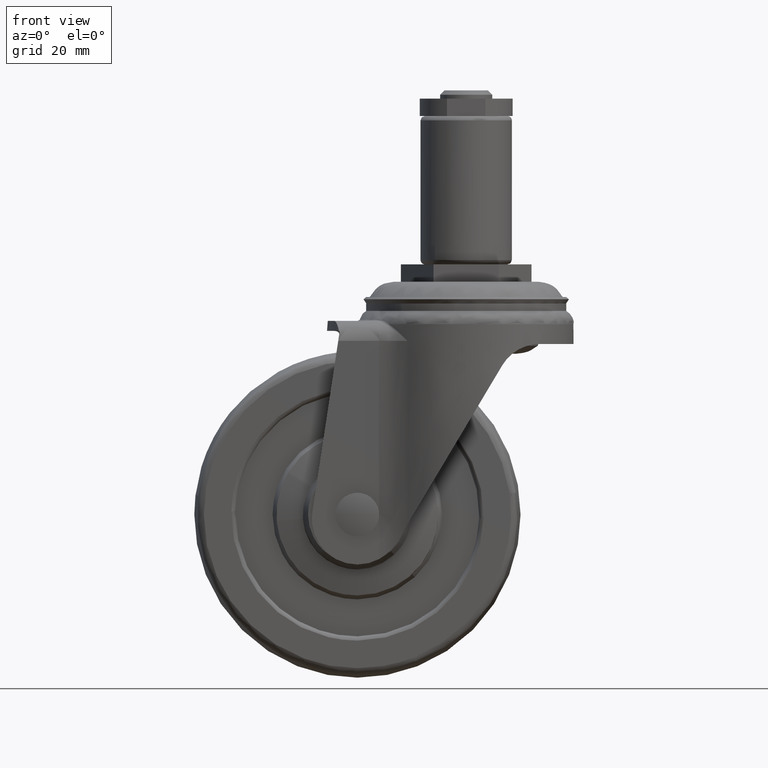
[diagram: clean part render]
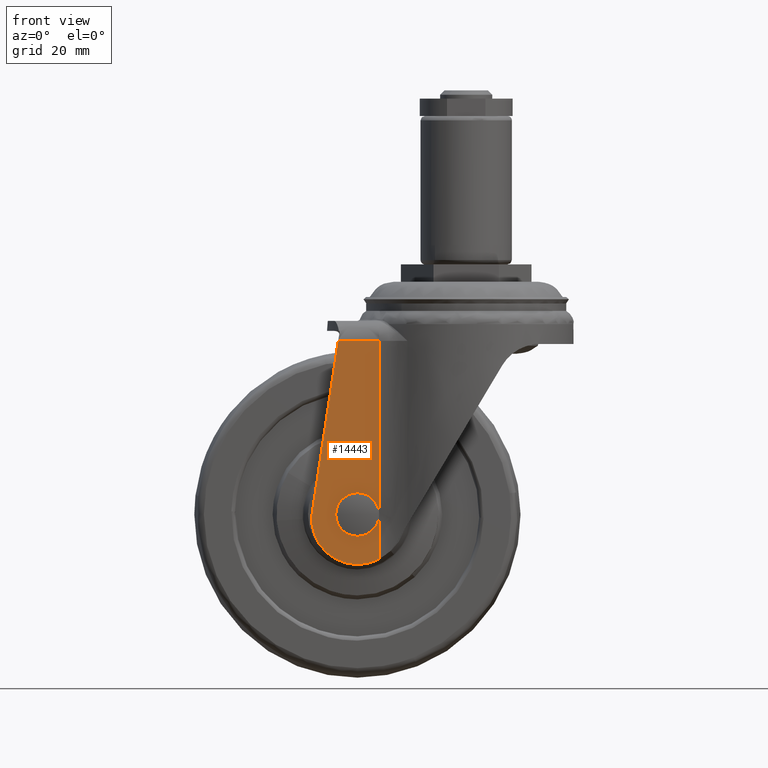
[diagram: same view with one face highlighted and labeled with its STEP entity id]
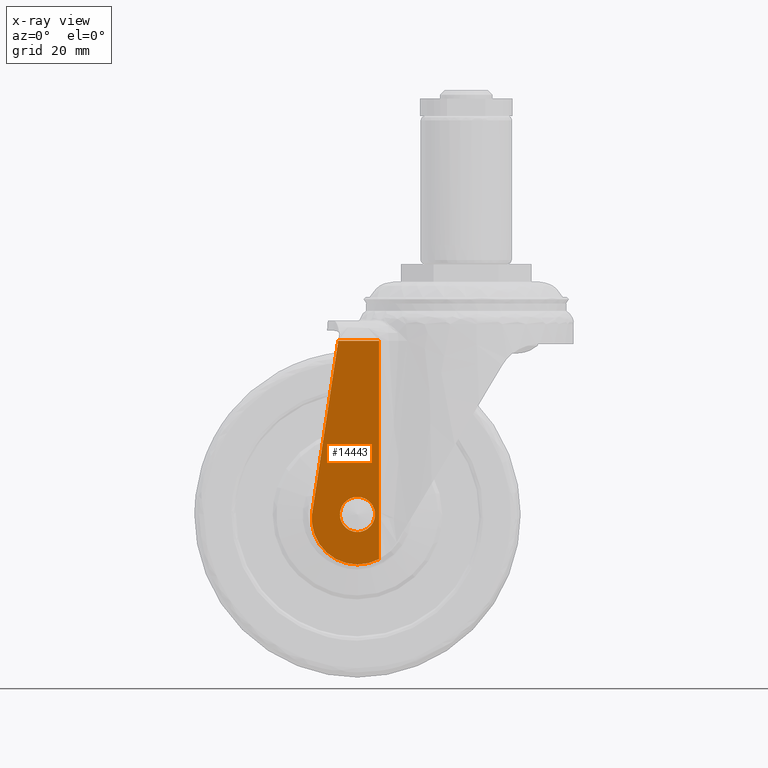
[diagram: x-ray of the same camera — body ghosted, the highlighted face saturated]
A machine part, front view. The second image highlights one B-rep face of the part: STEP entity #14443.
The next image is the same camera in x-ray: the body ghosted, the highlighted face saturated — about 0% of this face is hidden behind the body in this view.
In plain terms, the highlighted face is a freeform B-spline surface patch.
Its self-contained STEP definition (entity closure, byte-faithful):
#6963=CARTESIAN_POINT('',(-22.104730517182318,-18.808499999999999,-52.682374986802600));
#6964=VERTEX_POINT('',#6963);
#6970=CARTESIAN_POINT('',(-25.0,-18.808499999999999,-51.460000000000001));
#6971=VERTEX_POINT('',#6970);
#6972=CARTESIAN_POINT('',(-25.0,-18.808499999999999,-51.460000000000001));
#6973=CARTESIAN_POINT('',(-24.747820908732521,-18.808500000000031,-51.459983683508320));
#6974=CARTESIAN_POINT('',(-24.193039371534951,-18.808499999999981,-51.512089844375673));
#6975=CARTESIAN_POINT('',(-23.158415515402339,-18.808500000000009,-51.831538183724192));
#6976=CARTESIAN_POINT('',(-22.467896542841409,-18.808500000000031,-52.308423291384742));
#6977=CARTESIAN_POINT('',(-22.104730517182318,-18.808499999999999,-52.682374986802600));
#6978=B_SPLINE_CURVE_WITH_KNOTS('',3,(#6972,#6973,#6974,#6975,#6976,#6977),.UNSPECIFIED.,.F.,.U.,(4,1,1,4),(0.000000044570634,0.756546732482980,1.664377610406831,3.227933975321728),.UNSPECIFIED.);
#6979=EDGE_CURVE('',#6971,#6964,#6978,.T.);
#6981=CARTESIAN_POINT('',(-29.039999999999541,-18.808499999999999,-55.499998065191903));
#6982=VERTEX_POINT('',#6981);
#6983=CARTESIAN_POINT('',(-29.039999999999541,-18.808499999999999,-55.499998065191903));
#6984=CARTESIAN_POINT('',(-29.040147795907458,-18.808499999999999,-55.119886109124003));
#6985=CARTESIAN_POINT('',(-28.931917736165008,-18.808500000000009,-54.359748664216482));
#6986=CARTESIAN_POINT('',(-28.520576522014501,-18.808499999999921,-53.446672805311238));
#6987=CARTESIAN_POINT('',(-28.008177917698010,-18.808500000000141,-52.773529637566398));
#6988=CARTESIAN_POINT('',(-27.461349733231799,-18.808499999999832,-52.265487926082727));
#6989=CARTESIAN_POINT('',(-26.827196311980931,-18.808500000000230,-51.869342531482047));
#6990=CARTESIAN_POINT('',(-25.991485064705788,-18.808499999999849,-51.546971109374802));
#6991=CARTESIAN_POINT('',(-25.380118247272168,-18.808500000000048,-51.459851179663552));
#6992=CARTESIAN_POINT('',(-25.0,-18.808499999999999,-51.460000000000001));
#6993=B_SPLINE_CURVE_WITH_KNOTS('',3,(#6983,#6984,#6985,#6986,#6987,#6988,#6989,#6990,#6991,#6992),.UNSPECIFIED.,.F.,.U.,(4,1,1,1,1,1,1,4),(0.000000171866430,1.140301460826011,2.280636843987864,2.974731948040426,3.668786160509507,4.511647255233624,5.205754599899709,6.346055888333564),.UNSPECIFIED.);
#6994=EDGE_CURVE('',#6982,#6971,#6993,.T.);
#6996=CARTESIAN_POINT('',(-25.0,-18.808499999999999,-59.539999999999999));
#6997=VERTEX_POINT('',#6996);
#6998=CARTESIAN_POINT('',(-25.0,-18.808499999999999,-59.539999999999999));
#6999=CARTESIAN_POINT('',(-25.330523766623799,-18.808499999999938,-59.540088006725597));
#7000=CARTESIAN_POINT('',(-25.875839845038850,-18.808500000000059,-59.472679068412972));
#7001=CARTESIAN_POINT('',(-26.661345280837612,-18.808499999999949,-59.207833077012943));
#7002=CARTESIAN_POINT('',(-27.314181601843860,-18.808500000000102,-58.843302535463010));
#7003=CARTESIAN_POINT('',(-27.882641235858049,-18.808499999999899,-58.358947862811739));
#7004=CARTESIAN_POINT('',(-28.359468573408190,-18.808500000000059,-57.785181615995377));
#7005=CARTESIAN_POINT('',(-28.756497940501308,-18.808499999999921,-57.074316592196290));
#7006=CARTESIAN_POINT('',(-28.993077420443729,-18.808500000000109,-56.276720618098679));
#7007=CARTESIAN_POINT('',(-29.040007535480211,-18.808499999999871,-55.731353152179047));
#7008=CARTESIAN_POINT('',(-29.039999999999541,-18.808499999999999,-55.499998065191903));
#7009=B_SPLINE_CURVE_WITH_KNOTS('',3,(#6998,#6999,#7000,#7001,#7002,#7003,#7004,#7005,#7006,#7007,#7008),.UNSPECIFIED.,.F.,.U.,(4,1,1,1,1,1,1,1,4),(0.000000171194360,0.991551457431836,1.636093358708064,2.478955756741511,3.222555200872136,3.867102485042593,4.709964881645037,5.651984706222655,6.346058069326896),.UNSPECIFIED.);
#7010=EDGE_CURVE('',#6997,#6982,#7009,.T.);
#7012=CARTESIAN_POINT('',(-22.021399162267809,-18.808499999999999,-58.229384718741699));
#7013=VERTEX_POINT('',#7012);
#7014=CARTESIAN_POINT('',(-22.021399162267809,-18.808499999999999,-58.229384718741699));
#7015=CARTESIAN_POINT('',(-22.268809054453019,-18.808499999999999,-58.499559623756440));
#7016=CARTESIAN_POINT('',(-22.756534245997472,-18.808499999999970,-58.904298487705361));
#7017=CARTESIAN_POINT('',(-23.761715712064142,-18.808500000000031,-59.402230967816948));
#7018=CARTESIAN_POINT('',(-24.511484790319500,-18.808499999999970,-59.540412513309761));
#7019=CARTESIAN_POINT('',(-25.0,-18.808499999999999,-59.539999999999999));
#7020=B_SPLINE_CURVE_WITH_KNOTS('',3,(#7014,#7015,#7016,#7017,#7018,#7019),.UNSPECIFIED.,.F.,.U.,(4,1,1,4),(0.000000047505500,1.098997692472575,1.883971521049646,3.349310511199854),.UNSPECIFIED.);
#7021=EDGE_CURVE('',#7013,#6997,#7020,.T.);
#7108=CARTESIAN_POINT('',(-20.960000000000459,-18.808499999999999,-55.500001934808083));
#7109=VERTEX_POINT('',#7108);
#7110=CARTESIAN_POINT('',(-20.960000000000459,-18.808499999999999,-55.500001934808083));
#7111=CARTESIAN_POINT('',(-20.959895628326251,-18.808499999999999,-55.843387304970847));
#7112=CARTESIAN_POINT('',(-21.036106141159419,-18.808500000000020,-56.436430788300612));
#7113=CARTESIAN_POINT('',(-21.377883366357150,-18.808499999999992,-57.379648863901487));
#7114=CARTESIAN_POINT('',(-21.747098758372800,-18.808499999999999,-57.930292534110137));
#7115=CARTESIAN_POINT('',(-22.021399162267809,-18.808499999999999,-58.229384718741699));
#7116=B_SPLINE_CURVE_WITH_KNOTS('',3,(#7110,#7111,#7112,#7113,#7114,#7115),.UNSPECIFIED.,.F.,.U.,(4,1,1,4),(0.000000018090194,1.030148772845596,1.779346839673210,2.996795585193414),.UNSPECIFIED.);
#7117=EDGE_CURVE('',#7109,#7013,#7116,.T.);
#7119=CARTESIAN_POINT('',(-22.104730517182318,-18.808499999999999,-52.682374986802600));
#7120=CARTESIAN_POINT('',(-21.787342724169811,-18.808500000000031,-53.008081006994047));
#7121=CARTESIAN_POINT('',(-21.376765982348680,-18.808499999999970,-53.605289558790084));
#7122=CARTESIAN_POINT('',(-21.030895448921711,-18.808499999999999,-54.590589991655108));
#7123=CARTESIAN_POINT('',(-20.959934847758280,-18.808500000000009,-55.175194024259092));
#7124=CARTESIAN_POINT('',(-20.960000000000459,-18.808499999999999,-55.500001934808083));
#7125=B_SPLINE_CURVE_WITH_KNOTS('',3,(#7119,#7120,#7121,#7122,#7123,#7124),.UNSPECIFIED.,.F.,.U.,(4,1,1,4),(0.000000037525352,1.364190520225785,2.143704964423590,3.118124594297123),.UNSPECIFIED.);
#7126=EDGE_CURVE('',#6964,#7109,#7125,.T.);
#12949=CARTESIAN_POINT('',(-20.035015173357301,-18.808499999999999,-15.600000000000000));
#12950=VERTEX_POINT('',#12949);
#13047=CARTESIAN_POINT('',(-29.416606069662951,-18.808499999999999,-15.600000000000000));
#13048=VERTEX_POINT('',#13047);
#13057=CARTESIAN_POINT('',(-20.035015173357301,-18.808499999999999,-15.600000000000000));
#13058=CARTESIAN_POINT('',(-29.416606069662951,-18.808499999999999,-15.600000000000000));
#13059=QUASI_UNIFORM_CURVE('',1,(#13057,#13058),.UNSPECIFIED.,.F.,.U.);
#13060=EDGE_CURVE('',#12950,#13048,#13059,.T.);
#14380=CARTESIAN_POINT('',(-36.271205166056227,-18.808499999999999,-69.566677047671419));
#14381=CARTESIAN_POINT('',(-36.271205166056227,-18.808499999999999,-13.032604537243380));
#14382=CARTESIAN_POINT('',(-19.225916396111611,-18.808499999999999,-69.566677047671419));
#14383=CARTESIAN_POINT('',(-19.225916396111611,-18.808499999999999,-13.032604537243380));
#14384=B_SPLINE_SURFACE_WITH_KNOTS('',1,1,((#14380,#14382),(#14381,#14383)),.UNSPECIFIED.,.F.,.F.,.U.,(2,2),(2,2),(0.0,56.534072510428032),(0.0,17.045288769944619),.UNSPECIFIED.);
#14385=CARTESIAN_POINT('',(-20.035015173357301,-18.808499999999999,-65.751968745688984));
#14386=VERTEX_POINT('',#14385);
#14387=CARTESIAN_POINT('',(-20.035015173357301,-18.808499999999999,-56.090699306928997));
#14388=VERTEX_POINT('',#14387);
#14389=CARTESIAN_POINT('',(-20.035015173357301,-18.808499999999999,-65.751968745688984));
#14390=CARTESIAN_POINT('',(-20.035015173357301,-18.808499999999999,-56.090699306928997));
#14391=QUASI_UNIFORM_CURVE('',1,(#14389,#14390),.UNSPECIFIED.,.F.,.U.);
#14392=EDGE_CURVE('',#14386,#14388,#14391,.T.);
#14393=ORIENTED_EDGE('',*,*,#14392,.T.);
#14394=CARTESIAN_POINT('',(-20.035015173357301,-18.808499999999999,-54.909300693070797));
#14395=VERTEX_POINT('',#14394);
#14396=CARTESIAN_POINT('',(-20.035015173357301,-18.808499999999999,-56.090699306928997));
#14397=CARTESIAN_POINT('',(-19.988314801325359,-18.808565826366149,-55.698743910434906));
#14398=CARTESIAN_POINT('',(-19.988334632036189,-18.808565798413930,-55.301255949716527));
#14399=CARTESIAN_POINT('',(-20.035015173357301,-18.808499999999999,-54.909300693070797));
#14400=B_SPLINE_CURVE_WITH_KNOTS('',3,(#14396,#14397,#14398,#14399),.UNSPECIFIED.,.F.,.U.,(4,4),(3.578867E-009,1.184175429378862),.UNSPECIFIED.);
#14401=EDGE_CURVE('',#14388,#14395,#14400,.T.);
#14402=ORIENTED_EDGE('',*,*,#14401,.T.);
#14403=CARTESIAN_POINT('',(-20.035015173357301,-18.808499999999999,-54.909300693070797));
#14404=CARTESIAN_POINT('',(-20.035015173357301,-18.808499999999999,-15.600000000000000));
#14405=QUASI_UNIFORM_CURVE('',1,(#14403,#14404),.UNSPECIFIED.,.F.,.U.);
#14406=EDGE_CURVE('',#14395,#12950,#14405,.T.);
#14407=ORIENTED_EDGE('',*,*,#14406,.T.);
#14408=ORIENTED_EDGE('',*,*,#13060,.T.);
#14409=CARTESIAN_POINT('',(-35.452275027242500,-18.808499999999999,-55.500026622912202));
#14410=VERTEX_POINT('',#14409);
#14411=CARTESIAN_POINT('',(-35.452275027242500,-18.808499999999999,-55.500026622912202));
#14412=CARTESIAN_POINT('',(-29.416606069662951,-18.808499999999999,-15.600000000000000));
#14413=QUASI_UNIFORM_CURVE('',1,(#14411,#14412),.UNSPECIFIED.,.F.,.U.);
#14414=EDGE_CURVE('',#14410,#13048,#14413,.T.);
#14415=ORIENTED_EDGE('',*,*,#14414,.F.);
#14416=CARTESIAN_POINT('',(-20.035015173357301,-18.808499999999999,-65.751968745688984));
#14417=CARTESIAN_POINT('',(-20.867057740299320,-18.808500000000048,-66.198874757288905));
#14418=CARTESIAN_POINT('',(-22.290042596360141,-18.808499999999949,-66.729958369625919));
#14419=CARTESIAN_POINT('',(-24.546785092805880,-18.808500000000020,-67.053966969782991));
#14420=CARTESIAN_POINT('',(-26.385588045202532,-18.808500000000102,-66.967242967783491));
#14421=CARTESIAN_POINT('',(-28.403101330455279,-18.808499999999860,-66.498133826385185));
#14422=CARTESIAN_POINT('',(-30.252413012624970,-18.808500000000048,-65.685688982131126));
#14423=CARTESIAN_POINT('',(-32.099499633114171,-18.808500000000031,-64.341830558726784));
#14424=CARTESIAN_POINT('',(-33.407699697385873,-18.808499999999992,-62.882845940500943));
#14425=CARTESIAN_POINT('',(-34.496991662688437,-18.808499999999970,-61.121800001897299));
#14426=CARTESIAN_POINT('',(-35.171264594390898,-18.808500000000130,-59.375127882469563));
#14427=CARTESIAN_POINT('',(-35.517241026170680,-18.808499999999931,-57.361619546753580));
#14428=CARTESIAN_POINT('',(-35.514183797704042,-18.808499999999519,-56.146368370910302));
#14429=CARTESIAN_POINT('',(-35.452275027242500,-18.808499999999999,-55.500026622912202));
#14430=B_SPLINE_CURVE_WITH_KNOTS('',3,(#14416,#14417,#14418,#14419,#14420,#14421,#14422,#14423,#14424,#14425,#14426,#14427,#14428,#14429),.UNSPECIFIED.,.F.,.U.,(4,1,1,1,1,1,1,1,1,1,1,4),(0.000000203316706,2.833274777010335,4.515579032315035,6.817652128451162,8.322870447374337,10.713499209530021,12.838405526278731,15.140484058685979,16.557146715064981,19.036298026691892,20.718584952960558,22.666473034779820),.UNSPECIFIED.);
#14431=EDGE_CURVE('',#14386,#14410,#14430,.T.);
#14432=ORIENTED_EDGE('',*,*,#14431,.F.);
#14433=EDGE_LOOP('',(#14393,#14402,#14407,#14408,#14415,#14432));
#14434=FACE_OUTER_BOUND('',#14433,.T.);
#14435=ORIENTED_EDGE('',*,*,#7010,.T.);
#14436=ORIENTED_EDGE('',*,*,#6994,.T.);
#14437=ORIENTED_EDGE('',*,*,#6979,.T.);
#14438=ORIENTED_EDGE('',*,*,#7126,.T.);
#14439=ORIENTED_EDGE('',*,*,#7117,.T.);
#14440=ORIENTED_EDGE('',*,*,#7021,.T.);
#14441=EDGE_LOOP('',(#14435,#14436,#14437,#14438,#14439,#14440));
#14442=FACE_BOUND('',#14441,.T.);
#14443=ADVANCED_FACE('',(#14434,#14442),#14384,.F.);